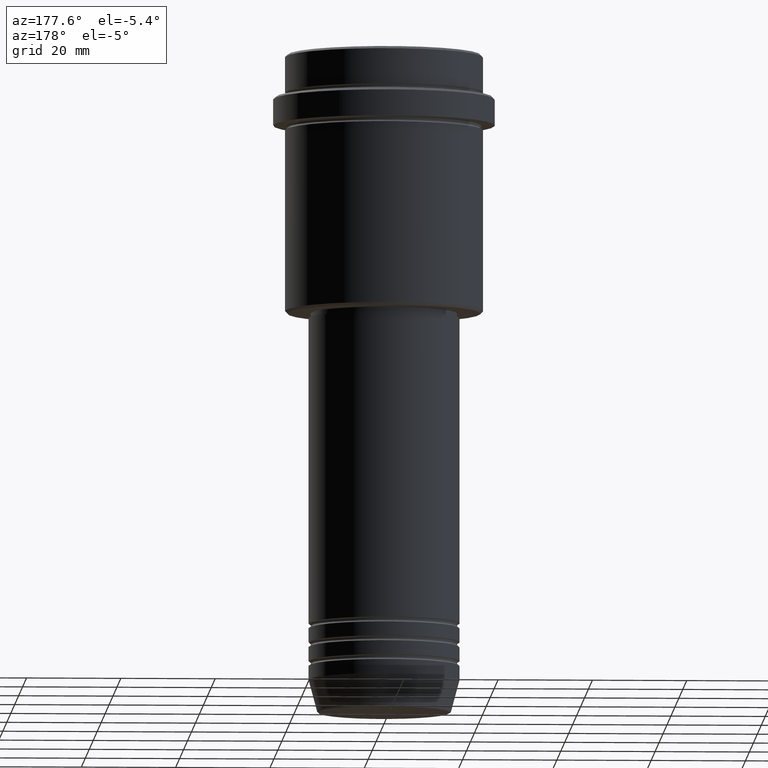
[diagram: clean part render]
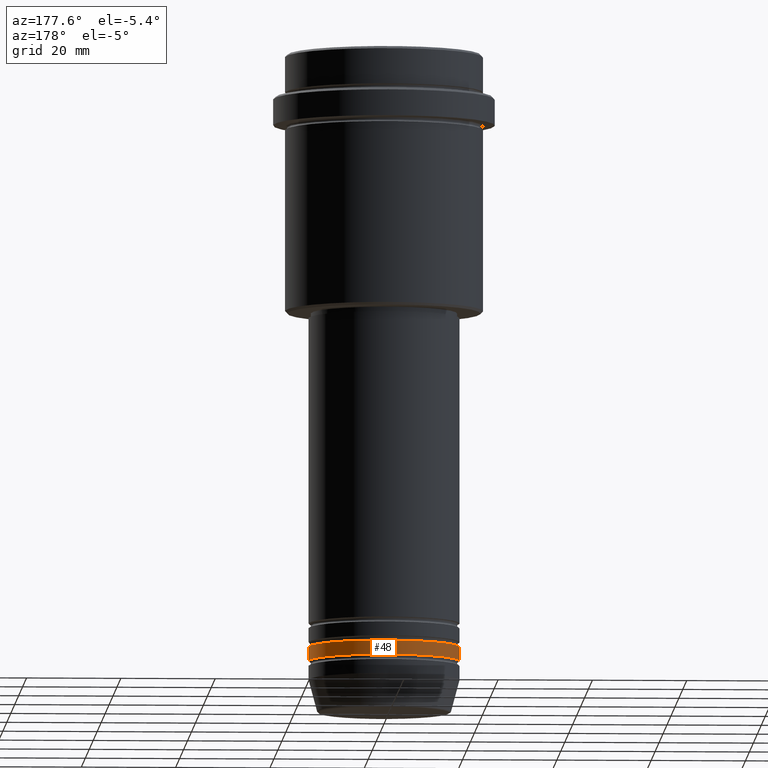
[diagram: same view with one face highlighted and labeled with its STEP entity id]
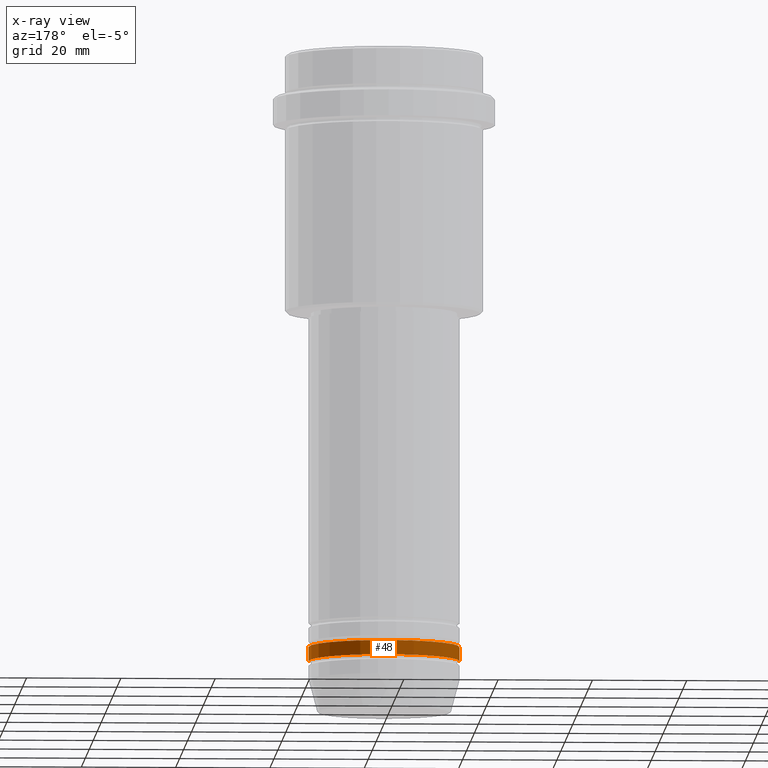
[diagram: x-ray of the same camera — body ghosted, the highlighted face saturated]
A machine part, auxiliary view. The second image highlights one B-rep face of the part: STEP entity #48.
The next image is the same camera in x-ray: the body ghosted, the highlighted face saturated — about 0% of this face is hidden behind the body in this view.
In plain terms, the highlighted cylindrical surface (partial cylindrical patch) has radius 16 mm, axis along (-0, -0, 1).
Its self-contained STEP definition (entity closure, byte-faithful):
#17 = EDGE_CURVE ( 'NONE', #490, #221, #803, .T. ) ;
#33 = CYLINDRICAL_SURFACE ( 'NONE', #1305, 16.00000000000000000 ) ;
#41 = ORIENTED_EDGE ( 'NONE', *, *, #216, .F. ) ;
#48 = ADVANCED_FACE ( 'NONE', ( #584 ), #33, .T. ) ;
#160 = CIRCLE ( 'NONE', #1064, 16.00000000000000000 ) ;
#184 = VECTOR ( 'NONE', #561, 1000.000000000000000 ) ;
#216 = EDGE_CURVE ( 'NONE', #1131, #736, #217, .T. ) ;
#217 = LINE ( 'NONE', #987, #184 ) ;
#221 = VERTEX_POINT ( 'NONE', #687 ) ;
#268 = DIRECTION ( 'NONE',  ( -0.000000000000000000, -0.000000000000000000, 1.000000000000000000 ) ) ;
#276 = EDGE_LOOP ( 'NONE', ( #962, #1316, #1117, #41 ) ) ;
#278 = CARTESIAN_POINT ( 'NONE',  ( 0.000000000000000000, 0.000000000000000000, 0.000000000000000000 ) ) ;
#322 = DIRECTION ( 'NONE',  ( -0.000000000000000000, -0.000000000000000000, 1.000000000000000000 ) ) ;
#490 = VERTEX_POINT ( 'NONE', #1389 ) ;
#506 = DIRECTION ( 'NONE',  ( -0.000000000000000000, -0.000000000000000000, 1.000000000000000000 ) ) ;
#549 = EDGE_CURVE ( 'NONE', #736, #221, #1091, .T. ) ;
#561 = DIRECTION ( 'NONE',  ( -0.000000000000000000, -0.000000000000000000, 1.000000000000000000 ) ) ;
#562 = CARTESIAN_POINT ( 'NONE',  ( 0.000000000000000000, 0.000000000000000000, -128.9999999999998863 ) ) ;
#584 = FACE_OUTER_BOUND ( 'NONE', #276, .T. ) ;
#586 = CARTESIAN_POINT ( 'NONE',  ( 16.00000000000000000, 0.000000000000000000, -128.9999999999998863 ) ) ;
#590 = CARTESIAN_POINT ( 'NONE',  ( 16.00000000000000000, 0.000000000000000000, -125.9999999999998863 ) ) ;
#639 = DIRECTION ( 'NONE',  ( 1.000000000000000000, 0.000000000000000000, 0.000000000000000000 ) ) ;
#672 = DIRECTION ( 'NONE',  ( -0.000000000000000000, -0.000000000000000000, 1.000000000000000000 ) ) ;
#687 = CARTESIAN_POINT ( 'NONE',  ( -16.00000000000000000, 1.959434878635765131E-15, -125.9999999999998863 ) ) ;
#736 = VERTEX_POINT ( 'NONE', #590 ) ;
#737 = CARTESIAN_POINT ( 'NONE',  ( 0.000000000000000000, 0.000000000000000000, -125.9999999999998863 ) ) ;
#757 = DIRECTION ( 'NONE',  ( 1.000000000000000000, 0.000000000000000000, 0.000000000000000000 ) ) ;
#803 = LINE ( 'NONE', #809, #1143 ) ;
#809 = CARTESIAN_POINT ( 'NONE',  ( -16.00000000000000000, 1.959434878635765131E-15, 0.000000000000000000 ) ) ;
#962 = ORIENTED_EDGE ( 'NONE', *, *, #1071, .T. ) ;
#987 = CARTESIAN_POINT ( 'NONE',  ( 16.00000000000000000, 0.000000000000000000, 0.000000000000000000 ) ) ;
#1064 = AXIS2_PLACEMENT_3D ( 'NONE', #562, #672, #757 ) ;
#1071 = EDGE_CURVE ( 'NONE', #1131, #490, #160, .T. ) ;
#1091 = CIRCLE ( 'NONE', #1203, 16.00000000000000000 ) ;
#1117 = ORIENTED_EDGE ( 'NONE', *, *, #549, .F. ) ;
#1131 = VERTEX_POINT ( 'NONE', #586 ) ;
#1143 = VECTOR ( 'NONE', #268, 1000.000000000000000 ) ;
#1203 = AXIS2_PLACEMENT_3D ( 'NONE', #737, #322, #639 ) ;
#1305 = AXIS2_PLACEMENT_3D ( 'NONE', #278, #506, #1363 ) ;
#1316 = ORIENTED_EDGE ( 'NONE', *, *, #17, .T. ) ;
#1363 = DIRECTION ( 'NONE',  ( 1.000000000000000000, 0.000000000000000000, 0.000000000000000000 ) ) ;
#1389 = CARTESIAN_POINT ( 'NONE',  ( -16.00000000000000000, 1.959434878635765131E-15, -128.9999999999998863 ) ) ;